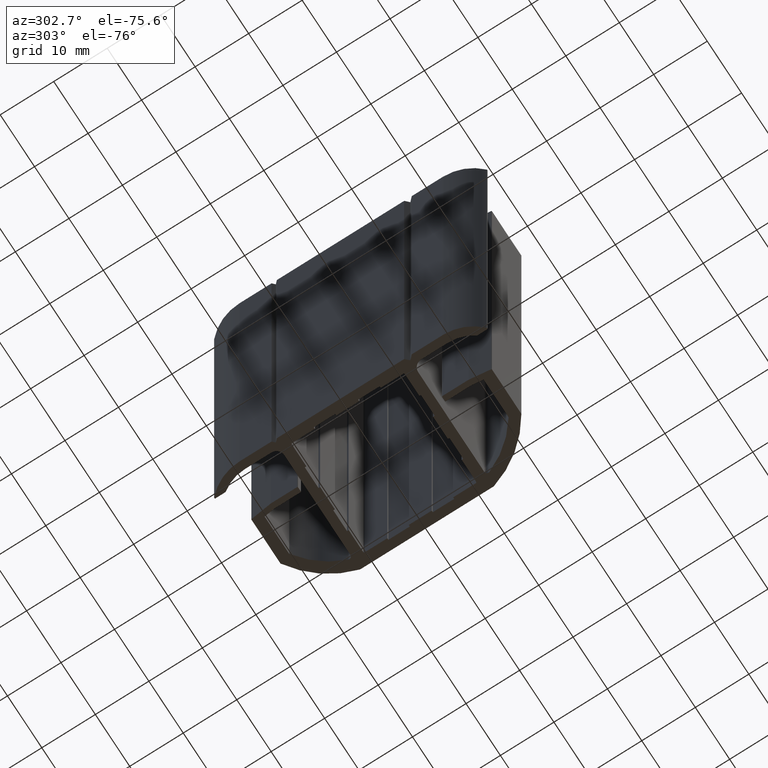
[diagram: clean part render]
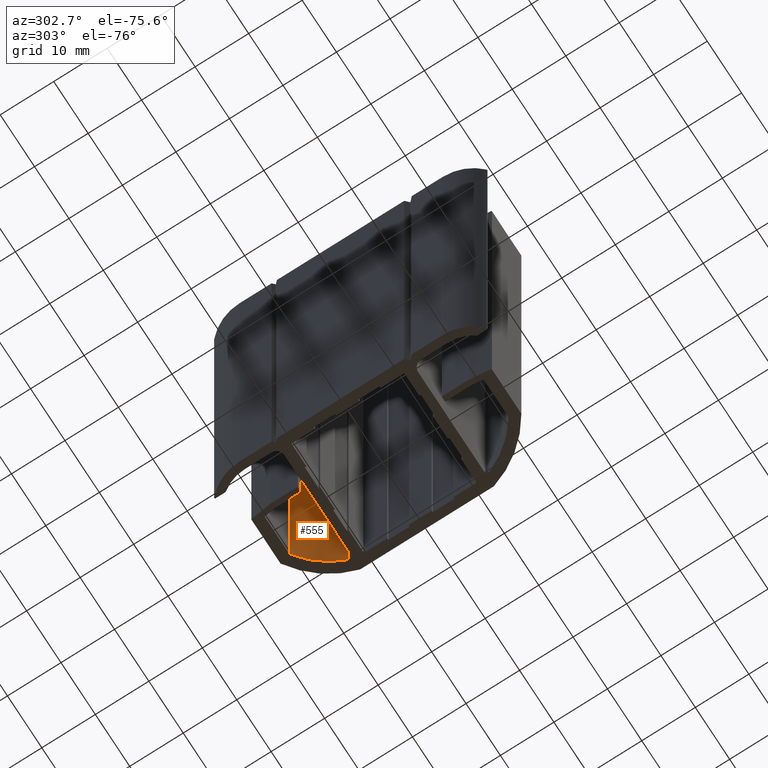
[diagram: same view with one face highlighted and labeled with its STEP entity id]
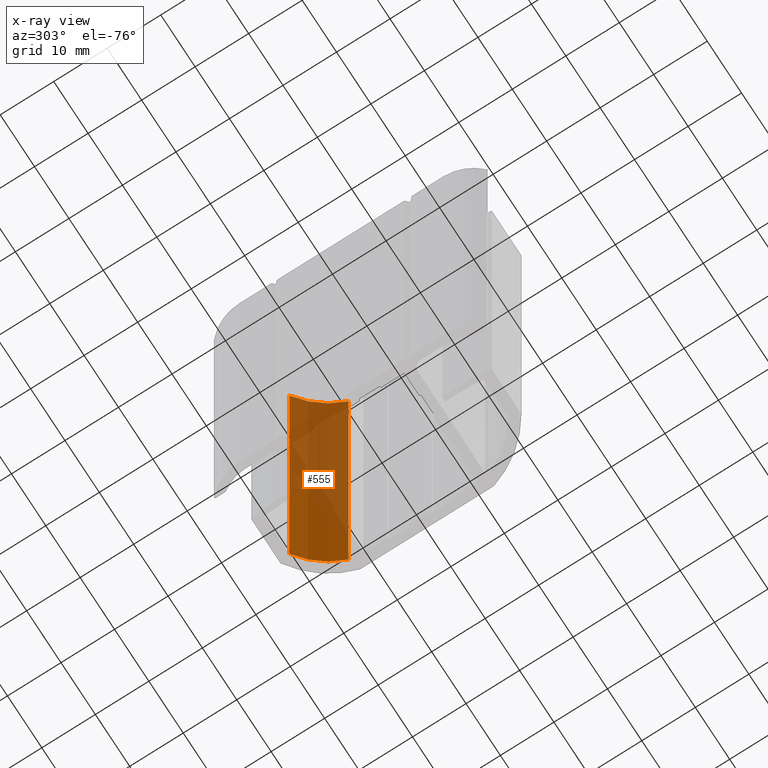
[diagram: x-ray of the same camera — body ghosted, the highlighted face saturated]
A machine part, auxiliary view. The second image highlights one B-rep face of the part: STEP entity #555.
The next image is the same camera in x-ray: the body ghosted, the highlighted face saturated — about 70% of this face is hidden behind the body in this view.
In plain terms, the highlighted cylindrical surface (partial cylindrical patch) has radius 15.72 mm, axis along (0, 0, -1).
Its self-contained STEP definition (entity closure, byte-faithful):
#495=CARTESIAN_POINT('',(14.914100363809666,20.482586188954230,-100.0));
#496=VERTEX_POINT('',#495);
#504=CARTESIAN_POINT('',(14.914100363809666,20.482586188954230,0.0));
#505=VERTEX_POINT('',#504);
#506=CARTESIAN_POINT('',(14.914100363809666,20.482586188954230,-100.0));
#507=DIRECTION('',(0.0,0.0,1.0));
#508=VECTOR('',#507,100.0);
#509=LINE('',#506,#508);
#510=EDGE_CURVE('',#496,#505,#509,.T.);
#523=CARTESIAN_POINT('',(6.049999999999955,7.499999999999801,-100.0));
#524=DIRECTION('',(0.0,0.0,-1.0));
#525=DIRECTION('',(0.563872449544956,0.825861889570024,0.0));
#526=AXIS2_PLACEMENT_3D('',#523,#524,#525);
#527=CYLINDRICAL_SURFACE('',#526,15.720045146669349);
#528=CARTESIAN_POINT('',(20.707750939953030,13.180682775477777,-100.0));
#529=VERTEX_POINT('',#528);
#530=CARTESIAN_POINT('',(6.049999999999955,7.499999999999801,-100.0));
#531=DIRECTION('',(0.0,0.0,-1.0));
#532=DIRECTION('',(1.0,0.0,0.0));
#533=AXIS2_PLACEMENT_3D('',#530,#531,#532);
#534=CIRCLE('',#533,15.720045146669349);
#535=EDGE_CURVE('',#496,#529,#534,.T.);
#536=ORIENTED_EDGE('',*,*,#535,.T.);
#537=CARTESIAN_POINT('',(20.707750939953030,13.180682775477777,0.0));
#538=VERTEX_POINT('',#537);
#539=CARTESIAN_POINT('',(20.707750939953030,13.180682775477777,-100.0));
#540=DIRECTION('',(0.0,0.0,1.0));
#541=VECTOR('',#540,100.0);
#542=LINE('',#539,#541);
#543=EDGE_CURVE('',#529,#538,#542,.T.);
#544=ORIENTED_EDGE('',*,*,#543,.T.);
#545=CARTESIAN_POINT('',(6.049999999999955,7.499999999999801,0.0));
#546=DIRECTION('',(0.0,0.0,-1.0));
#547=DIRECTION('',(1.0,0.0,0.0));
#548=AXIS2_PLACEMENT_3D('',#545,#546,#547);
#549=CIRCLE('',#548,15.720045146669349);
#550=EDGE_CURVE('',#505,#538,#549,.T.);
#551=ORIENTED_EDGE('',*,*,#550,.F.);
#552=ORIENTED_EDGE('',*,*,#510,.F.);
#553=EDGE_LOOP('',(#536,#544,#551,#552));
#554=FACE_OUTER_BOUND('',#553,.T.);
#555=ADVANCED_FACE('',(#554),#527,.F.);